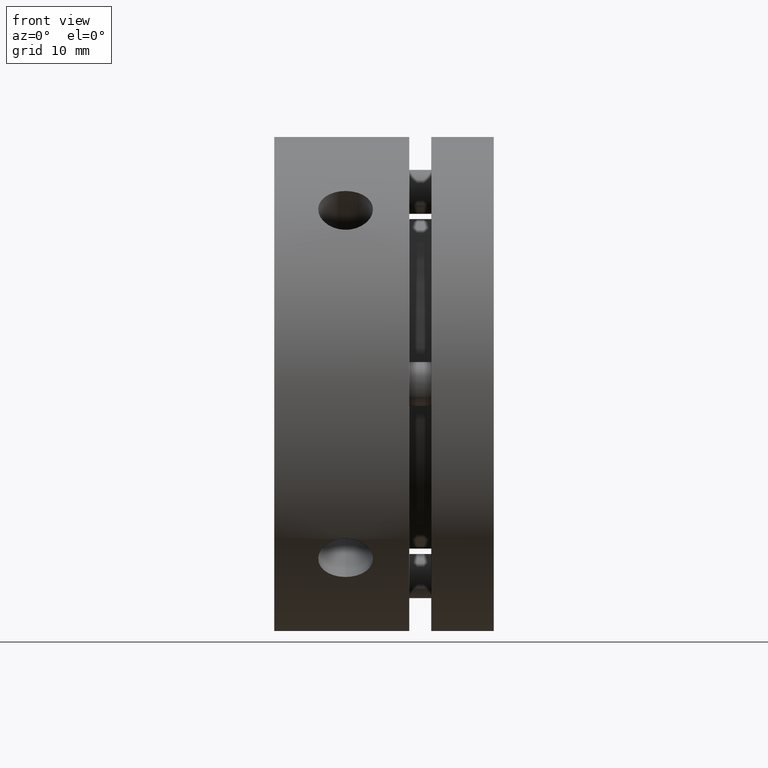
[diagram: clean part render]
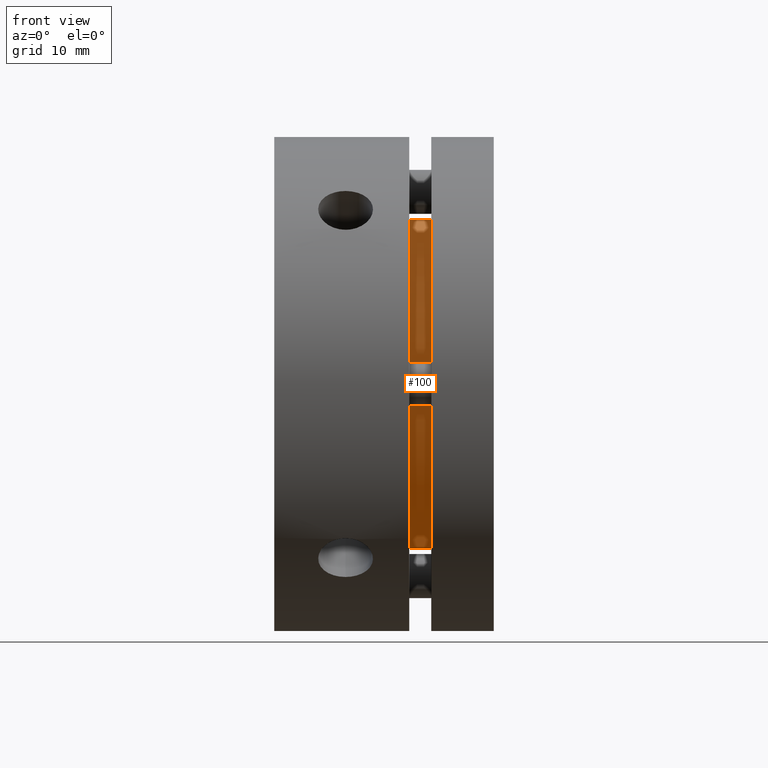
[diagram: same view with one face highlighted and labeled with its STEP entity id]
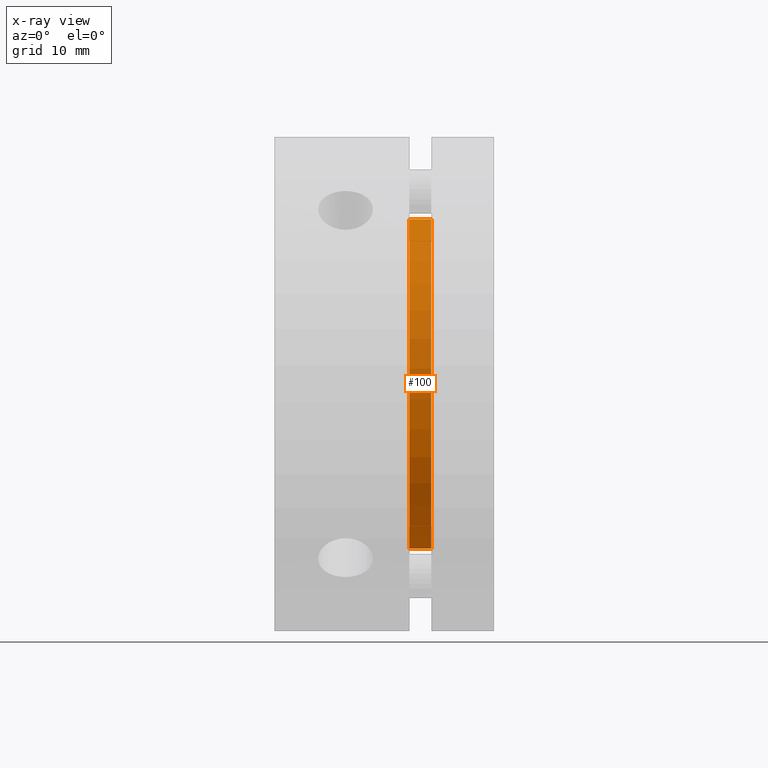
[diagram: x-ray of the same camera — body ghosted, the highlighted face saturated]
A machine part, front view. The second image highlights one B-rep face of the part: STEP entity #100.
The next image is the same camera in x-ray: the body ghosted, the highlighted face saturated — about 0% of this face is hidden behind the body in this view.
In plain terms, the highlighted cylindrical surface (partial cylindrical patch) has radius 15 mm, axis along (-1, 0, 0).
Its self-contained STEP definition (entity closure, byte-faithful):
#100 = ADVANCED_FACE ( 'NONE', ( #2544 ), #2553, .T. ) ;
#417 = DIRECTION ( 'NONE',  ( 0.0000000000000000000, 0.0000000000000000000, 1.000000000000000000 ) ) ;
#419 = DIRECTION ( 'NONE',  ( -1.000000000000000000, 0.0000000000000000000, 0.0000000000000000000 ) ) ;
#421 = CARTESIAN_POINT ( 'NONE',  ( 13.30000000000000100, 0.0000000000000000000, 0.0000000000000000000 ) ) ;
#510 = CARTESIAN_POINT ( 'NONE',  ( 14.29999999999999900, 1.836970198721029600E-015, -15.00000000000000000 ) ) ;
#511 = CARTESIAN_POINT ( 'NONE',  ( 12.30000000000000100, 1.836970198721029600E-015, -15.00000000000000000 ) ) ;
#524 = CARTESIAN_POINT ( 'NONE',  ( 14.29999999999999900, 0.0000000000000000000, 15.00000000000000000 ) ) ;
#533 = CARTESIAN_POINT ( 'NONE',  ( 12.30000000000000100, 0.0000000000000000000, 15.00000000000000000 ) ) ;
#568 = CARTESIAN_POINT ( 'NONE',  ( 14.29999999999999900, 0.0000000000000000000, 0.0000000000000000000 ) ) ;
#569 = DIRECTION ( 'NONE',  ( -1.000000000000000000, 0.0000000000000000000, 0.0000000000000000000 ) ) ;
#570 = DIRECTION ( 'NONE',  ( 0.0000000000000000000, 0.0000000000000000000, 1.000000000000000000 ) ) ;
#607 = CARTESIAN_POINT ( 'NONE',  ( 12.30000000000000100, 0.0000000000000000000, 0.0000000000000000000 ) ) ;
#608 = DIRECTION ( 'NONE',  ( 1.000000000000000000, -0.0000000000000000000, -0.0000000000000000000 ) ) ;
#609 = DIRECTION ( 'NONE',  ( 0.0000000000000000000, 0.0000000000000000000, 1.000000000000000000 ) ) ;
#990 = AXIS2_PLACEMENT_3D ( 'NONE', #421, #419, #417 ) ;
#992 = AXIS2_PLACEMENT_3D ( 'NONE', #568, #569, #570 ) ;
#1005 = AXIS2_PLACEMENT_3D ( 'NONE', #607, #608, #609 ) ;
#1758 = CARTESIAN_POINT ( 'NONE',  ( 13.30000000000000100, 1.836970198721029600E-015, -15.00000000000000000 ) ) ;
#1766 = DIRECTION ( 'NONE',  ( -1.000000000000000000, 0.0000000000000000000, 0.0000000000000000000 ) ) ;
#1778 = DIRECTION ( 'NONE',  ( -1.000000000000000000, 0.0000000000000000000, 0.0000000000000000000 ) ) ;
#1784 = CARTESIAN_POINT ( 'NONE',  ( 13.30000000000000100, 0.0000000000000000000, 15.00000000000000000 ) ) ;
#1946 = EDGE_LOOP ( 'NONE', ( #2255, #2256, #2257, #2258 ) ) ;
#2255 = ORIENTED_EDGE ( 'NONE', *, *, #3529, .F. ) ;
#2256 = ORIENTED_EDGE ( 'NONE', *, *, #3315, .T. ) ;
#2257 = ORIENTED_EDGE ( 'NONE', *, *, #3534, .T. ) ;
#2258 = ORIENTED_EDGE ( 'NONE', *, *, #3328, .T. ) ;
#2544 = FACE_OUTER_BOUND ( 'NONE', #1946, .T. ) ;
#2553 = CYLINDRICAL_SURFACE ( 'NONE', #990, 15.00000000000000000 ) ;
#2558 = CIRCLE ( 'NONE', #992, 15.00000000000000000 ) ;
#2566 = CIRCLE ( 'NONE', #1005, 15.00000000000000000 ) ;
#2992 = VERTEX_POINT ( 'NONE', #510 ) ;
#3003 = VERTEX_POINT ( 'NONE', #511 ) ;
#3038 = VERTEX_POINT ( 'NONE', #524 ) ;
#3067 = LINE ( 'NONE', #1784, #3079 ) ;
#3070 = LINE ( 'NONE', #1758, #3072 ) ;
#3072 = VECTOR ( 'NONE', #1766, 1000.000000000000000 ) ;
#3079 = VECTOR ( 'NONE', #1778, 1000.000000000000000 ) ;
#3271 = VERTEX_POINT ( 'NONE', #533 ) ;
#3315 = EDGE_CURVE ( 'NONE', #2992, #3038, #2558, .T. ) ;
#3328 = EDGE_CURVE ( 'NONE', #3271, #3003, #2566, .T. ) ;
#3529 = EDGE_CURVE ( 'NONE', #2992, #3003, #3070, .T. ) ;
#3534 = EDGE_CURVE ( 'NONE', #3038, #3271, #3067, .T. ) ;